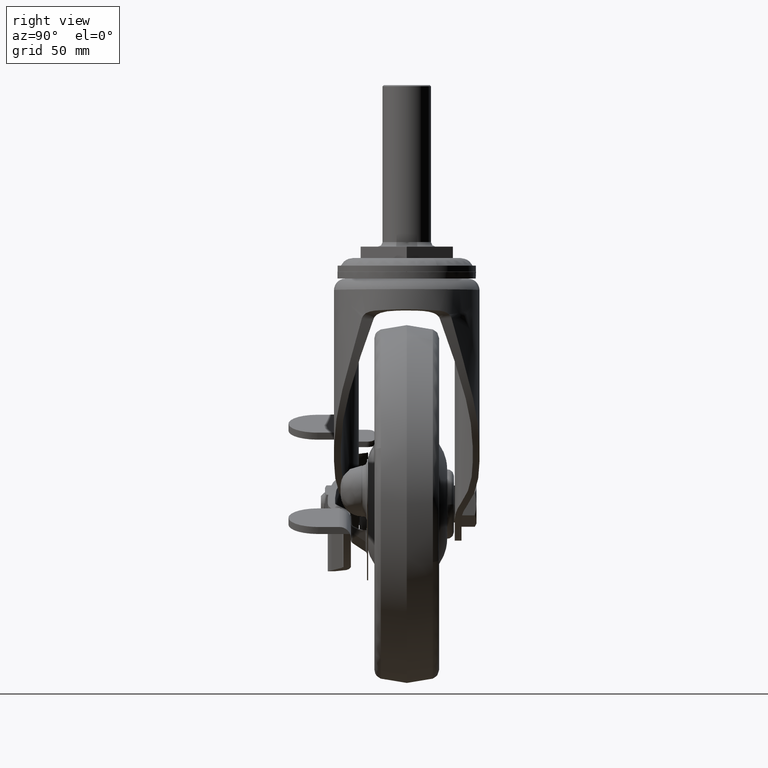
[diagram: clean part render]
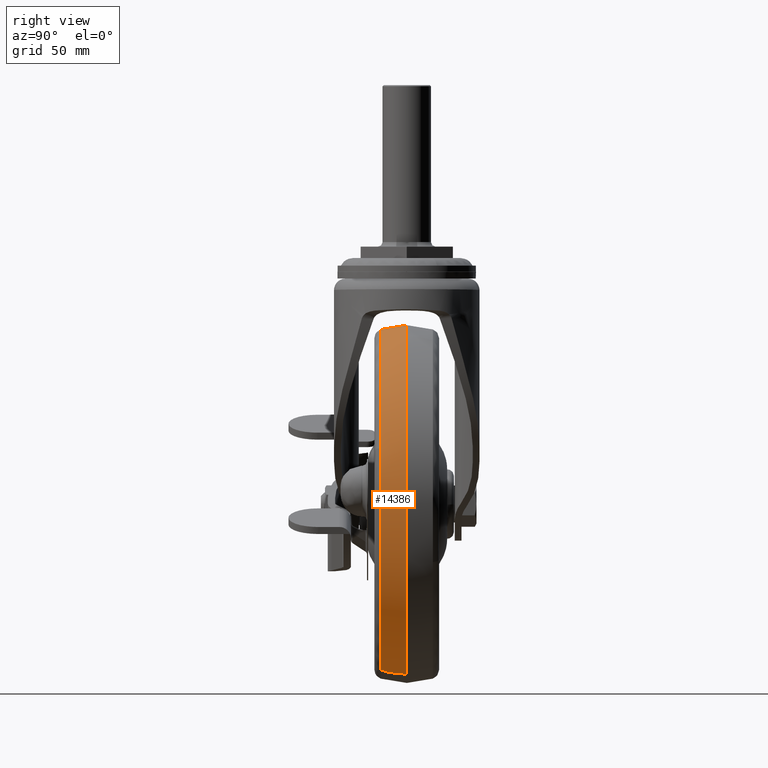
[diagram: same view with one face highlighted and labeled with its STEP entity id]
A machine part, right view. The second image highlights one B-rep face of the part: STEP entity #14386.
In plain terms, the highlighted face is a freeform B-spline surface patch.
Its self-contained STEP definition (entity closure, byte-faithful):
#14045=CARTESIAN_POINT('',(-67.948751497716955,0.000005281391752,-32.893098588027740));
#14046=VERTEX_POINT('',#14045);
#14074=CARTESIAN_POINT('',(-44.0,3.704434E-014,-29.099999904632568));
#14075=VERTEX_POINT('',#14074);
#14076=CARTESIAN_POINT('',(-44.0,3.704434E-014,-29.099999904632568));
#14077=CARTESIAN_POINT('',(-56.274758790185558,0.000002640695852,-29.099999904647536));
#14078=CARTESIAN_POINT('',(-67.948751497716955,0.000005281391752,-32.893098588027748));
#14086=(BOUNDED_CURVE()B_SPLINE_CURVE(2,(#14076,#14077,#14078),.UNSPECIFIED.,.F.,.U.)B_SPLINE_CURVE_WITH_KNOTS((3,3),(0.500000000000000,0.552549683514041),.UNSPECIFIED.)CURVE()GEOMETRIC_REPRESENTATION_ITEM()RATIONAL_B_SPLINE_CURVE((1.0,0.938434216191777,0.902750532018882))REPRESENTATION_ITEM(''));
#14087=EDGE_CURVE('',#14075,#14046,#14086,.T.);
#14089=CARTESIAN_POINT('',(-17.290173453955770,3.580840E-012,-33.848125936464378));
#14090=VERTEX_POINT('',#14089);
#14091=CARTESIAN_POINT('',(-17.290173453955770,3.580840E-012,-33.848125936464378));
#14092=CARTESIAN_POINT('',(-30.223056640498388,1.808942E-012,-29.099999904632579));
#14093=CARTESIAN_POINT('',(-44.0,3.704434E-014,-29.099999904632568));
#14101=(BOUNDED_CURVE()B_SPLINE_CURVE(2,(#14091,#14092,#14093),.UNSPECIFIED.,.F.,.U.)B_SPLINE_CURVE_WITH_KNOTS((3,3),(0.441460350202762,0.500000000000000),.UNSPECIFIED.)CURVE()GEOMETRIC_REPRESENTATION_ITEM()RATIONAL_B_SPLINE_CURVE((0.894951884913622,0.931416534170698,1.0))REPRESENTATION_ITEM(''));
#14102=EDGE_CURVE('',#14090,#14075,#14101,.T.);
#14146=CARTESIAN_POINT('',(-20.051248502283041,0.000005281391752,-180.306901221237410));
#14147=VERTEX_POINT('',#14146);
#14148=CARTESIAN_POINT('',(-20.051248502283041,0.000005281391752,-180.306901221237410));
#14149=CARTESIAN_POINT('',(-16.606172456281740,0.000005238706619,-179.187721277270500));
#14150=CARTESIAN_POINT('',(-10.221739142417951,0.000005141293034,-176.605734183075610));
#14151=CARTESIAN_POINT('',(-2.280609684002769,0.000004973045549,-172.088093108631200));
#14152=CARTESIAN_POINT('',(5.331451276354201,0.000004770484527,-166.612357568545210));
#14153=CARTESIAN_POINT('',(11.794105571009521,0.000004552489377,-160.686795622062790));
#14154=CARTESIAN_POINT('',(18.343774775466279,0.000004269441328,-152.958243585061410));
#14155=CARTESIAN_POINT('',(23.231680458887769,0.000003998432362,-145.532339621286410));
#14156=CARTESIAN_POINT('',(27.128161120157792,0.000003713174131,-137.692456736009800));
#14157=CARTESIAN_POINT('',(29.963599468415872,0.000003441455329,-130.208167854867810));
#14158=CARTESIAN_POINT('',(32.135687822757852,0.000003143492241,-121.983331457055100));
#14159=CARTESIAN_POINT('',(33.465214288256632,0.000002807689847,-112.692911937214800));
#14160=CARTESIAN_POINT('',(33.648710759013667,0.000002406031367,-101.553975657850800));
#14161=CARTESIAN_POINT('',(32.179202089144880,0.000002026447519,-90.996248361608551));
#14162=CARTESIAN_POINT('',(29.153136365630601,0.000001647049505,-80.414331907321269));
#14163=CARTESIAN_POINT('',(25.039357685051979,0.000001300825223,-70.732181186870221));
#14164=CARTESIAN_POINT('',(19.302922660528029,0.000000970551488,-61.461923591622622));
#14165=CARTESIAN_POINT('',(13.555295360588060,0.000000724406194,-54.525259515710388));
#14166=CARTESIAN_POINT('',(8.071297807621605,0.000000530763689,-49.050043658471921));
#14167=CARTESIAN_POINT('',(2.295427215114302,0.000000361887194,-44.256358496811707));
#14168=CARTESIAN_POINT('',(-6.261787441602372,0.000000163855980,-38.601458917539013));
#14169=CARTESIAN_POINT('',(-12.951567975540209,0.000000054456494,-35.440494497922607));
#14170=CARTESIAN_POINT('',(-17.290173453955770,3.580840E-012,-33.848125936464378));
#14171=B_SPLINE_CURVE_WITH_KNOTS('',3,(#14148,#14149,#14150,#14151,#14152,#14153,#14154,#14155,#14156,#14157,#14158,#14159,#14160,#14161,#14162,#14163,#14164,#14165,#14166,#14167,#14168,#14169,#14170),.UNSPECIFIED.,.F.,.U.,(4,1,1,1,1,1,1,1,1,1,1,1,1,1,1,1,1,1,1,1,4),(0.000000206578903,10.866903027737520,20.609669305560178,27.354659620907480,38.971027608235907,46.840187072225262,57.707129108140691,65.576282394654825,73.070710250681316,81.689285392595693,91.057334226056597,101.174607534845710,115.039336872820700,122.908482870165400,134.150214670379310,146.516034106949890,155.509345448152400,161.130180212030610,169.748767642365100,177.992635462642710,191.857319180694300),.UNSPECIFIED.);
#14172=EDGE_CURVE('',#14147,#14090,#14171,.T.);
#14233=CARTESIAN_POINT('',(-20.629363176576561,-11.290322580671379,-178.527424109339110));
#14234=VERTEX_POINT('',#14233);
#14235=CARTESIAN_POINT('',(-20.051248502283034,0.000005281391752,-180.306901221237410));
#14236=CARTESIAN_POINT('',(-20.051215448643052,-5.800192173991362,-180.306891401768130));
#14237=CARTESIAN_POINT('',(-20.629363176576557,-11.290322580671390,-178.527424109339110));
#14245=(BOUNDED_CURVE()B_SPLINE_CURVE(2,(#14235,#14236,#14237),.UNSPECIFIED.,.F.,.U.)B_SPLINE_CURVE_WITH_KNOTS((3,3),(-1.335869043330223,-0.660560422593488),.UNSPECIFIED.)CURVE()GEOMETRIC_REPRESENTATION_ITEM()RATIONAL_B_SPLINE_CURVE((0.950249605280165,0.937530657279252,0.950384817018649))REPRESENTATION_ITEM(''));
#14246=EDGE_CURVE('',#14147,#14234,#14245,.T.);
#14278=CARTESIAN_POINT('',(-67.370636823423453,-11.290322580671370,-34.672575699926092));
#14279=VERTEX_POINT('',#14278);
#14295=CARTESIAN_POINT('',(-67.948751497716955,0.000005281391752,-32.893098588027740));
#14296=CARTESIAN_POINT('',(-67.948784551356951,-5.800192173991356,-32.893108407496982));
#14297=CARTESIAN_POINT('',(-67.370636823423453,-11.290322580671369,-34.672575699926085));
#14305=(BOUNDED_CURVE()B_SPLINE_CURVE(2,(#14295,#14296,#14297),.UNSPECIFIED.,.F.,.U.)B_SPLINE_CURVE_WITH_KNOTS((3,3),(-1.335869043330223,-0.660560422593488),.UNSPECIFIED.)CURVE()GEOMETRIC_REPRESENTATION_ITEM()RATIONAL_B_SPLINE_CURVE((0.950249605280165,0.937530657279252,0.950384817018649))REPRESENTATION_ITEM(''));
#14306=EDGE_CURVE('',#14046,#14279,#14305,.T.);
#14311=CARTESIAN_POINT('',(-20.052623709785603,0.571269821186747,-180.302445671566350));
#14312=CARTESIAN_POINT('',(53.649822057148199,0.571269821186748,-156.355069381351970));
#14313=CARTESIAN_POINT('',(29.702445766933806,0.571269821186747,-82.652623614418189));
#14314=CARTESIAN_POINT('',(5.755069476719421,0.571269821186748,-8.950177847484380));
#14315=CARTESIAN_POINT('',(-67.947376290214379,0.571269821186747,-32.897554137698755));
#14316=CARTESIAN_POINT('',(-20.020400164434331,-5.816655970818472,-180.401619546603430));
#14317=CARTESIAN_POINT('',(53.781219477536496,-5.816655970818473,-156.422019711037820));
#14318=CARTESIAN_POINT('',(29.801619641970859,-5.816655970818472,-82.620400069066903));
#14319=CARTESIAN_POINT('',(5.822019806405187,-5.816655970818473,-8.818780427096073));
#14320=CARTESIAN_POINT('',(-67.979599835565665,-5.816655970818472,-32.798380262661716));
#14321=CARTESIAN_POINT('',(-20.687663239191618,-11.829463618782803,-178.347994966457920));
#14322=CARTESIAN_POINT('',(51.060331822633763,-11.829463618782800,-155.035658205649580));
#14323=CARTESIAN_POINT('',(27.747995061825417,-11.829463618782803,-83.287663143824204));
#14324=CARTESIAN_POINT('',(4.435658301017027,-11.829463618782800,-11.539668081998791));
#14325=CARTESIAN_POINT('',(-67.312336760808378,-11.829463618782803,-34.852004842807162));
#14333=(BOUNDED_SURFACE()B_SPLINE_SURFACE(2,2,((#14311,#14316,#14321),(#14312,#14317,#14322),(#14313,#14318,#14323),(#14314,#14319,#14324),(#14315,#14320,#14325)),.UNSPECIFIED.,.F.,.F.,.U.)B_SPLINE_SURFACE_WITH_KNOTS((3,2,3),(3,3),(0.0,128.398479348653890,256.796958697307670),(0.0,12.672855165060639),.UNSPECIFIED.)GEOMETRIC_REPRESENTATION_ITEM()RATIONAL_B_SPLINE_SURFACE(((0.951584034468798,0.936189475025618,0.951732752322452),(0.672871523641740,0.661985926266088,0.672976683044543),(0.951584034468798,0.936189475025618,0.951732752322452),(0.672871523641740,0.661985926266088,0.672976683044543),(0.951584034468798,0.936189475025618,0.951732752322452)))REPRESENTATION_ITEM('')SURFACE());
#14334=ORIENTED_EDGE('',*,*,#14087,.T.);
#14335=ORIENTED_EDGE('',*,*,#14306,.T.);
#14336=CARTESIAN_POINT('',(-44.0,-11.290322580645039,-30.971030466616970));
#14337=VERTEX_POINT('',#14336);
#14338=CARTESIAN_POINT('',(-44.0,-11.290322580645039,-30.971030466616970));
#14339=CARTESIAN_POINT('',(-55.978451996770417,-11.290322580654491,-30.971030466615399));
#14340=CARTESIAN_POINT('',(-67.370636823423453,-11.290322580671374,-34.672575699926078));
#14348=(BOUNDED_CURVE()B_SPLINE_CURVE(2,(#14338,#14339,#14340),.UNSPECIFIED.,.F.,.U.)B_SPLINE_CURVE_WITH_KNOTS((3,3),(0.500000000000000,0.552549825473948),.UNSPECIFIED.)CURVE()GEOMETRIC_REPRESENTATION_ITEM()RATIONAL_B_SPLINE_CURVE((1.0,0.938434049875401,0.902750339224285))REPRESENTATION_ITEM(''));
#14349=EDGE_CURVE('',#14337,#14279,#14348,.T.);
#14350=ORIENTED_EDGE('',*,*,#14349,.F.);
#14351=CARTESIAN_POINT('',(27.628068763134390,-11.290322580987249,-82.327365447236915));
#14352=VERTEX_POINT('',#14351);
#14353=CARTESIAN_POINT('',(27.628068763134401,-11.290322580987247,-82.327365447236915));
#14354=CARTESIAN_POINT('',(10.224925448277043,-11.290322580816143,-30.971030466635682));
#14355=CARTESIAN_POINT('',(-44.0,-11.290322580645039,-30.971030466616970));
#14363=(BOUNDED_CURVE()B_SPLINE_CURVE(2,(#14353,#14354,#14355),.UNSPECIFIED.,.F.,.U.)B_SPLINE_CURVE_WITH_KNOTS((3,3),(0.304552238306101,0.500000000000000),.UNSPECIFIED.)CURVE()GEOMETRIC_REPRESENTATION_ITEM()RATIONAL_B_SPLINE_CURVE((0.900068462127167,0.771018703870357,1.0))REPRESENTATION_ITEM(''));
#14364=EDGE_CURVE('',#14352,#14337,#14363,.T.);
#14365=ORIENTED_EDGE('',*,*,#14364,.F.);
#14366=CARTESIAN_POINT('',(-20.629363176576565,-11.290322580671386,-178.527424109339020));
#14367=CARTESIAN_POINT('',(31.628969437960674,-11.290322580801716,-161.547662550563470));
#14368=CARTESIAN_POINT('',(31.628969437920720,-11.290322580935131,-106.599999904664500));
#14369=CARTESIAN_POINT('',(31.628969437911664,-11.290322580965400,-94.133944957586593));
#14370=CARTESIAN_POINT('',(27.628068763134401,-11.290322580987247,-82.327365447236915));
#14378=(BOUNDED_CURVE()B_SPLINE_CURVE(2,(#14366,#14367,#14368,#14369,#14370),.UNSPECIFIED.,.F.,.U.)B_SPLINE_CURVE_WITH_KNOTS((3,2,3),(0.052549825473948,0.250000000000000,0.304552238306101),.UNSPECIFIED.)CURVE()GEOMETRIC_REPRESENTATION_ITEM()RATIONAL_B_SPLINE_CURVE((0.902750339224285,0.768672731311147,1.0,0.936088077316190,0.900068462127167))REPRESENTATION_ITEM(''));
#14379=EDGE_CURVE('',#14234,#14352,#14378,.T.);
#14380=ORIENTED_EDGE('',*,*,#14379,.F.);
#14381=ORIENTED_EDGE('',*,*,#14246,.F.);
#14382=ORIENTED_EDGE('',*,*,#14172,.T.);
#14383=ORIENTED_EDGE('',*,*,#14102,.T.);
#14384=EDGE_LOOP('',(#14334,#14335,#14350,#14365,#14380,#14381,#14382,#14383));
#14385=FACE_OUTER_BOUND('',#14384,.T.);
#14386=ADVANCED_FACE('',(#14385),#14333,.T.);